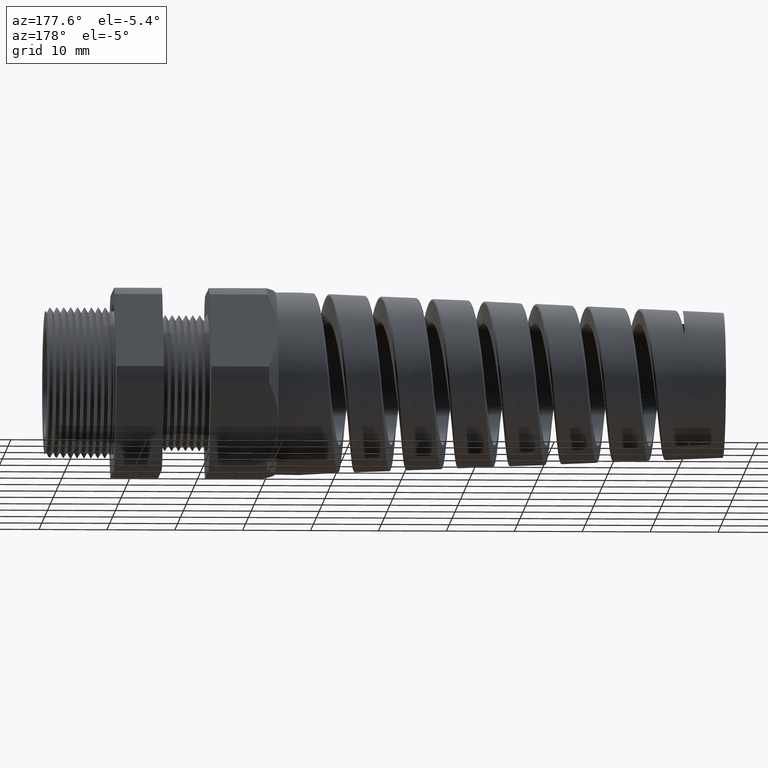
[diagram: clean part render]
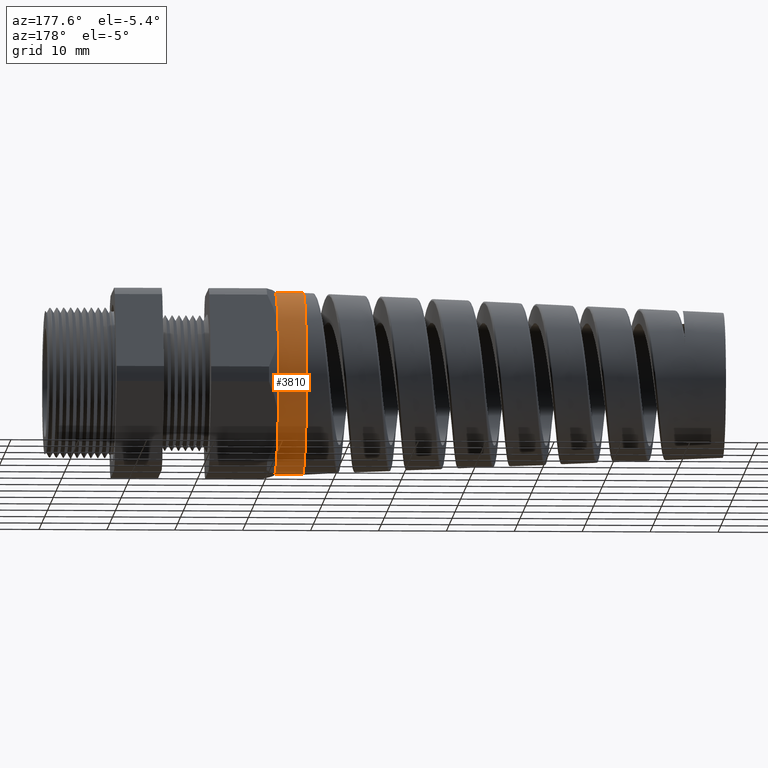
[diagram: same view with one face highlighted and labeled with its STEP entity id]
A machine part, auxiliary view. The second image highlights one B-rep face of the part: STEP entity #3810.
In plain terms, the highlighted cylindrical surface (partial cylindrical patch) has radius 13.462 mm, axis along (1, 0, 0).
Its self-contained STEP definition (entity closure, byte-faithful):
#3785 = VERTEX_POINT ( 'NONE', #10398 ) ;
#3786 = EDGE_CURVE ( 'NONE', #3798, #3785, #10397, .T. ) ;
#3788 = EDGE_CURVE ( 'NONE', #3789, #3867, #10392, .T. ) ;
#3789 = VERTEX_POINT ( 'NONE', #10393 ) ;
#3791 = ORIENTED_EDGE ( 'NONE', *, *, #3792, .F. ) ;
#3792 = EDGE_CURVE ( 'NONE', #3785, #3864, #10447, .T. ) ;
#3793 = ORIENTED_EDGE ( 'NONE', *, *, #3786, .F. ) ;
#3796 = EDGE_CURVE ( 'NONE', #3797, #3798, #10442, .T. ) ;
#3797 = VERTEX_POINT ( 'NONE', #10437 ) ;
#3798 = VERTEX_POINT ( 'NONE', #10436 ) ;
#3810 = ADVANCED_FACE ( 'NONE', ( #10418 ), #10524, .T. ) ;
#3811 = EDGE_LOOP ( 'NONE', ( #3812, #3866, #3862, #3863, #3791, #3793 ) ) ;
#3812 = ORIENTED_EDGE ( 'NONE', *, *, #3796, .F. ) ;
#3858 = EDGE_CURVE ( 'NONE', #3797, #3867, #10803, .T. ) ;
#3862 = ORIENTED_EDGE ( 'NONE', *, *, #3788, .F. ) ;
#3863 = ORIENTED_EDGE ( 'NONE', *, *, #3865, .F. ) ;
#3864 = VERTEX_POINT ( 'NONE', #10875 ) ;
#3865 = EDGE_CURVE ( 'NONE', #3864, #3789, #10904, .T. ) ;
#3866 = ORIENTED_EDGE ( 'NONE', *, *, #3858, .T. ) ;
#3867 = VERTEX_POINT ( 'NONE', #10905 ) ;
#10388 = DIRECTION ( 'NONE',  ( 0.0000000000000000000, 0.0000000000000000000, -1.000000000000000000 ) ) ;
#10389 = DIRECTION ( 'NONE',  ( 1.000000000000000000, 0.0000000000000000000, 0.0000000000000000000 ) ) ;
#10390 = CARTESIAN_POINT ( 'NONE',  ( -1.251889763779527200, 0.0000000000000000000, 0.0000000000000000000 ) ) ;
#10391 = AXIS2_PLACEMENT_3D ( 'NONE', #10390, #10389, #10388 ) ;
#10392 = CIRCLE ( 'NONE', #10391, 0.5300000000000000300 ) ;
#10393 = CARTESIAN_POINT ( 'NONE',  ( -1.251889763779527200, 0.4589934640057528000, 0.2650000000000001200 ) ) ;
#10394 = DIRECTION ( 'NONE',  ( 1.000000000000000000, 0.0000000000000000000, 0.0000000000000000000 ) ) ;
#10395 = VECTOR ( 'NONE', #10394, 39.37007874015748100 ) ;
#10396 = CARTESIAN_POINT ( 'NONE',  ( 0.09602717987635048200, 0.0000000000000000000, -0.5300000000000000300 ) ) ;
#10397 = LINE ( 'NONE', #10396, #10395 ) ;
#10398 = CARTESIAN_POINT ( 'NONE',  ( -1.251889763779527200, 6.829619984160658000E-017, -0.5300000000000001400 ) ) ;
#10418 = FACE_OUTER_BOUND ( 'NONE', #3811, .T. ) ;
#10436 = CARTESIAN_POINT ( 'NONE',  ( -1.413761783411077800, 0.0000000000000000000, -0.5300000000000001400 ) ) ;
#10437 = CARTESIAN_POINT ( 'NONE',  ( -1.413761783411077800, 6.490628035480973600E-017, 0.5300000000000001400 ) ) ;
#10438 = DIRECTION ( 'NONE',  ( 0.0000000000000000000, 0.0000000000000000000, 1.000000000000000000 ) ) ;
#10439 = DIRECTION ( 'NONE',  ( -1.000000000000000000, 0.0000000000000000000, 0.0000000000000000000 ) ) ;
#10440 = CARTESIAN_POINT ( 'NONE',  ( -1.413761783411077800, 0.0000000000000000000, 0.0000000000000000000 ) ) ;
#10441 = AXIS2_PLACEMENT_3D ( 'NONE', #10440, #10439, #10438 ) ;
#10442 = CIRCLE ( 'NONE', #10441, 0.5300000000000001400 ) ;
#10443 = DIRECTION ( 'NONE',  ( 0.0000000000000000000, 0.0000000000000000000, -1.000000000000000000 ) ) ;
#10444 = DIRECTION ( 'NONE',  ( 1.000000000000000000, 0.0000000000000000000, 0.0000000000000000000 ) ) ;
#10445 = CARTESIAN_POINT ( 'NONE',  ( -1.251889763779527200, 0.0000000000000000000, 0.0000000000000000000 ) ) ;
#10446 = AXIS2_PLACEMENT_3D ( 'NONE', #10445, #10444, #10443 ) ;
#10447 = CIRCLE ( 'NONE', #10446, 0.5300000000000000300 ) ;
#10520 = DIRECTION ( 'NONE',  ( 0.0000000000000000000, 0.0000000000000000000, -1.000000000000000000 ) ) ;
#10521 = DIRECTION ( 'NONE',  ( 1.000000000000000000, 0.0000000000000000000, 0.0000000000000000000 ) ) ;
#10522 = CARTESIAN_POINT ( 'NONE',  ( 0.09602717987635048200, 0.0000000000000000000, 0.0000000000000000000 ) ) ;
#10523 = AXIS2_PLACEMENT_3D ( 'NONE', #10522, #10521, #10520 ) ;
#10524 = CYLINDRICAL_SURFACE ( 'NONE', #10523, 0.5300000000000000300 ) ;
#10803 = LINE ( 'NONE', #10884, #10883 ) ;
#10875 = CARTESIAN_POINT ( 'NONE',  ( -1.251889763779527200, 0.4589934640057528600, -0.2650000000000001200 ) ) ;
#10882 = DIRECTION ( 'NONE',  ( 1.000000000000000000, 0.0000000000000000000, 0.0000000000000000000 ) ) ;
#10883 = VECTOR ( 'NONE', #10882, 39.37007874015748100 ) ;
#10884 = CARTESIAN_POINT ( 'NONE',  ( 0.09602717987635048200, 6.490628035480972400E-017, 0.5300000000000000300 ) ) ;
#10900 = DIRECTION ( 'NONE',  ( 0.0000000000000000000, 0.0000000000000000000, -1.000000000000000000 ) ) ;
#10901 = DIRECTION ( 'NONE',  ( 1.000000000000000000, 0.0000000000000000000, 0.0000000000000000000 ) ) ;
#10902 = CARTESIAN_POINT ( 'NONE',  ( -1.251889763779527200, 0.0000000000000000000, 0.0000000000000000000 ) ) ;
#10903 = AXIS2_PLACEMENT_3D ( 'NONE', #10902, #10901, #10900 ) ;
#10904 = CIRCLE ( 'NONE', #10903, 0.5300000000000000300 ) ;
#10905 = CARTESIAN_POINT ( 'NONE',  ( -1.251889763779527200, 0.0000000000000000000, 0.5300000000000001400 ) ) ;